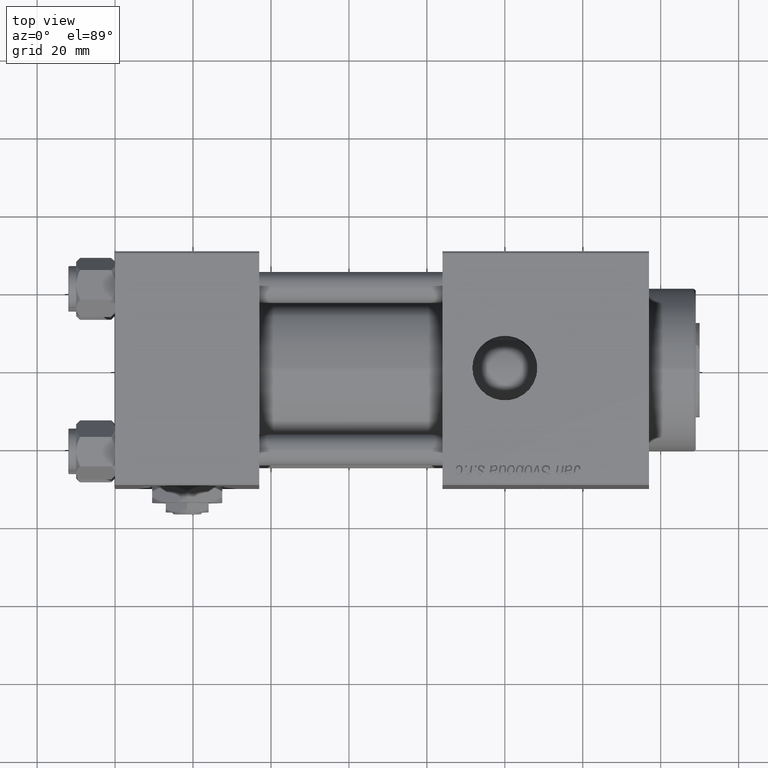
[diagram: clean part render]
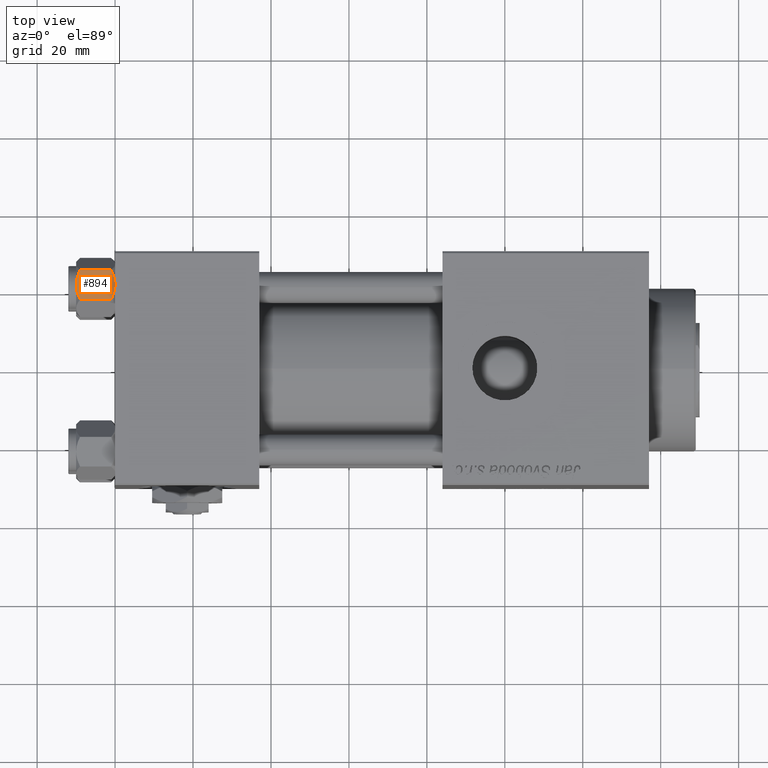
[diagram: same view with one face highlighted and labeled with its STEP entity id]
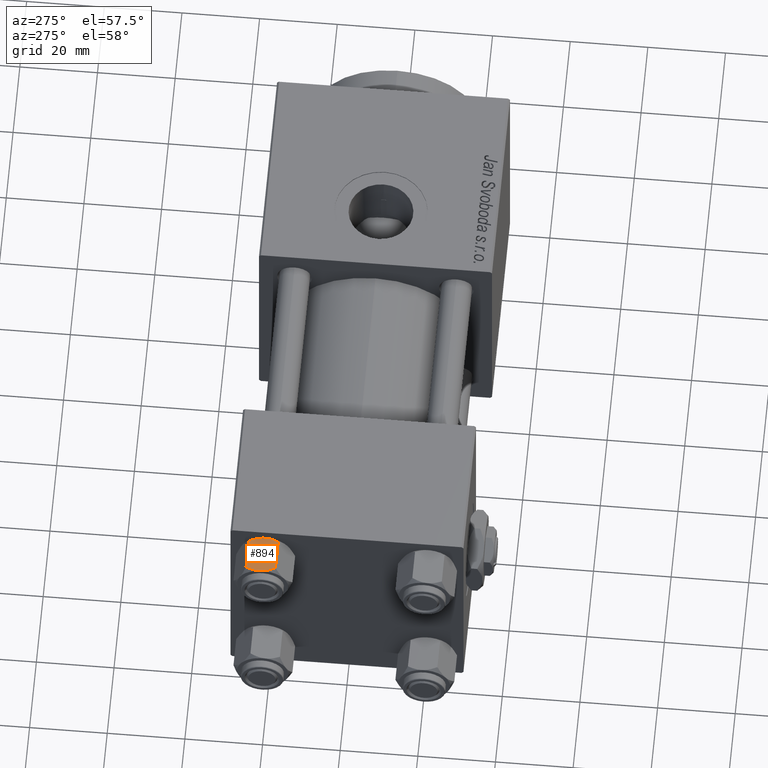
[diagram: same view with one face highlighted and labeled with its STEP entity id]
A machine part, top view. The second image highlights one B-rep face of the part: STEP entity #894.
A second angle (auxiliary view) of the same face is appended — the face is thin or edge-on in the first view.
In plain terms, the highlighted planar face has unit normal (-0, -0.0859, -0.9963).
Its self-contained STEP definition (entity closure, byte-faithful):
#151 = FACE_OUTER_BOUND ( 'NONE', #7601, .T. ) ;
#376 = CARTESIAN_POINT ( 'NONE',  ( -1.321220139090811596, -6.599113576837424056, -0.1031287899203731512 ) ) ;
#737 = DIRECTION ( 'NONE',  ( -2.276539994720218856E-16, 1.000000000000000000, 0.000000000000000000 ) ) ;
#784 = CARTESIAN_POINT ( 'NONE',  ( 3.810000000000001830, -6.599113576837421391, -1.020886423162573386 ) ) ;
#894 = ADVANCED_FACE ( 'NONE', ( #151 ), #50441, .F. ) ;
#1128 = CARTESIAN_POINT ( 'NONE',  ( 3.810000000000001830, -6.599113576837421391, -1.020886423162573386 ) ) ;
#1392 = CARTESIAN_POINT ( 'NONE',  ( 1.322914178891813064, -6.599113576837424056, -0.1235268105129692928 ) ) ;
#1695 = ORIENTED_EDGE ( 'NONE', *, *, #39317, .T. ) ;
#2037 = CARTESIAN_POINT ( 'NONE',  ( -3.810000000000000941, -6.599113576837422279, -8.979113576837425725 ) ) ;
#2202 = B_SPLINE_CURVE_WITH_KNOTS ( 'NONE', 3,
 ( #21491, #25641, #43247, #34601, #52766, #20621, #29838, #3627 ),
 .UNSPECIFIED., .F., .F.,
 ( 4, 2, 2, 4 ),
 ( 0.009819555616540128623, 0.01081320815973739469, 0.01180686070293466075, 0.01379416578932919114 ),
 .UNSPECIFIED. ) ;
#3627 = CARTESIAN_POINT ( 'NONE',  ( 1.502314598737159031E-15, -6.599113576837423167, -10.00000000000000000 ) ) ;
#4202 = VECTOR ( 'NONE', #47600, 1000.000000000000000 ) ;
#4256 = LINE ( 'NONE', #17941, #45630 ) ;
#4468 = CARTESIAN_POINT ( 'NONE',  ( 1.502314598737159031E-15, -6.599113576837423167, -10.00000000000000000 ) ) ;
#5425 = VERTEX_POINT ( 'NONE', #26906 ) ;
#6099 = DIRECTION ( 'NONE',  ( -1.000000000000000000, -2.276539994720218856E-16, 0.000000000000000000 ) ) ;
#6650 = ORIENTED_EDGE ( 'NONE', *, *, #24175, .F. ) ;
#7471 = CARTESIAN_POINT ( 'NONE',  ( 3.810000000000002274, -6.599113576837421391, -8.979113576837427502 ) ) ;
#7601 = EDGE_LOOP ( 'NONE', ( #51574, #1695, #19340, #44867, #19160, #6650 ) ) ;
#9071 = VERTEX_POINT ( 'NONE', #46241 ) ;
#11971 = B_SPLINE_CURVE_WITH_KNOTS ( 'NONE', 3,
 ( #49787, #39969, #58150, #22984, #41134, #376, #45329, #36386 ),
 .UNSPECIFIED., .F., .F.,
 ( 4, 2, 2, 4 ),
 ( 0.009819555616540130358, 0.01081320815973739642, 0.01180686070293466249, 0.01379416578932919461 ),
 .UNSPECIFIED. ) ;
#12419 = AXIS2_PLACEMENT_3D ( 'NONE', #41510, #737, #6099 ) ;
#12548 = CARTESIAN_POINT ( 'NONE',  ( -2.597134508597688018, -6.599113576837424056, -9.533493788376173228 ) ) ;
#13268 = VERTEX_POINT ( 'NONE', #2037 ) ;
#17595 = EDGE_CURVE ( 'NONE', #9071, #5425, #11971, .T. ) ;
#17941 = CARTESIAN_POINT ( 'NONE',  ( -3.810000000000000497, -6.599113576837423167, -10.00000000000000000 ) ) ;
#18658 = CARTESIAN_POINT ( 'NONE',  ( 2.597134508597689795, -6.599113576837422279, -0.4665062116238259393 ) ) ;
#19160 = ORIENTED_EDGE ( 'NONE', *, *, #22854, .F. ) ;
#19340 = ORIENTED_EDGE ( 'NONE', *, *, #47208, .F. ) ;
#20621 = CARTESIAN_POINT ( 'NONE',  ( 1.321220139090812928, -6.599113576837419615, -9.896871210079625669 ) ) ;
#21178 = CARTESIAN_POINT ( 'NONE',  ( -3.218941489257537203, -6.599113576837424944, -9.274642832208826349 ) ) ;
#21491 = CARTESIAN_POINT ( 'NONE',  ( 3.810000000000002274, -6.599113576837421391, -8.979113576837427502 ) ) ;
#22854 = EDGE_CURVE ( 'NONE', #13268, #9071, #4256, .T. ) ;
#22984 = CARTESIAN_POINT ( 'NONE',  ( -2.595243993515035541, -6.599113576837424056, -0.4863343809427778663 ) ) ;
#23115 = CARTESIAN_POINT ( 'NONE',  ( 1.644694619042206263, -6.599113576837420503, -0.1950540855582392763 ) ) ;
#24175 = EDGE_CURVE ( 'NONE', #52134, #13268, #58036, .T. ) ;
#25345 = CARTESIAN_POINT ( 'NONE',  ( -1.644694619042203376, -6.599113576837423167, -9.804945914441761445 ) ) ;
#25624 = CARTESIAN_POINT ( 'NONE',  ( -3.810000000000000941, -6.599113576837422279, -8.979113576837425725 ) ) ;
#25641 = CARTESIAN_POINT ( 'NONE',  ( 3.514577180542135082, -6.599113576837422279, -9.126824986566363762 ) ) ;
#26906 = CARTESIAN_POINT ( 'NONE',  ( 1.502314598737159031E-15, -6.599113576837423167, 0.000000000000000000 ) ) ;
#29838 = CARTESIAN_POINT ( 'NONE',  ( 0.6696516825697170772, -6.599113576837421391, -10.00000000000003553 ) ) ;
#29866 = EDGE_CURVE ( 'NONE', #48782, #52134, #2202, .T. ) ;
#30391 = CARTESIAN_POINT ( 'NONE',  ( -0.3341450623252832375, -6.599113576837424056, -10.00000000000003908 ) ) ;
#32040 = CARTESIAN_POINT ( 'NONE',  ( 1.502314598737159031E-15, -6.599113576837423167, 0.000000000000000000 ) ) ;
#34601 = CARTESIAN_POINT ( 'NONE',  ( 2.595243993515039538, -6.599113576837422279, -9.513665619057226408 ) ) ;
#36386 = CARTESIAN_POINT ( 'NONE',  ( 1.502314598737159031E-15, -6.599113576837423167, 0.000000000000000000 ) ) ;
#37387 = CARTESIAN_POINT ( 'NONE',  ( 0.6690374540965451367, -6.599113576837424056, -0.02594513746131340073 ) ) ;
#37496 = LINE ( 'NONE', #55671, #4202 ) ;
#39187 = B_SPLINE_CURVE_WITH_KNOTS ( 'NONE', 3,
 ( #32040, #50789, #37387, #1392, #23115, #18658, #46034, #784 ),
 .UNSPECIFIED., .F., .F.,
 ( 4, 2, 2, 4 ),
 ( 0.01379416578932919461, 0.01478579800535598232, 0.01577743022138276829, 0.01776069465343634371 ),
 .UNSPECIFIED. ) ;
#39317 = EDGE_CURVE ( 'NONE', #48782, #57107, #37496, .T. ) ;
#39969 = CARTESIAN_POINT ( 'NONE',  ( -3.514577180542132417, -6.599113576837423167, -0.8731750134336407898 ) ) ;
#40203 = CARTESIAN_POINT ( 'NONE',  ( -1.322914178891809511, -6.599113576837419615, -9.876473189487029458 ) ) ;
#41134 = CARTESIAN_POINT ( 'NONE',  ( -2.277955073808399344, -6.599113576837422279, -0.3754051764526859514 ) ) ;
#41510 = CARTESIAN_POINT ( 'NONE',  ( 3.810000000000002274, -6.599113576837421391, -10.00000000000000000 ) ) ;
#43247 = CARTESIAN_POINT ( 'NONE',  ( 3.213362517975222765, -6.599113576837421391, -9.264675626424066834 ) ) ;
#44096 = CARTESIAN_POINT ( 'NONE',  ( 1.502314598737159031E-15, -6.599113576837423167, -10.00000000000000000 ) ) ;
#44867 = ORIENTED_EDGE ( 'NONE', *, *, #17595, .F. ) ;
#45329 = CARTESIAN_POINT ( 'NONE',  ( -0.6696516825697146347, -6.599113576837423167, 3.561265323435979714E-14 ) ) ;
#45612 = DIRECTION ( 'NONE',  ( -0.000000000000000000, -0.000000000000000000, 1.000000000000000000 ) ) ;
#45630 = VECTOR ( 'NONE', #45612, 1000.000000000000000 ) ;
#46034 = CARTESIAN_POINT ( 'NONE',  ( 3.218941489257540312, -6.599113576837421391, -0.7253571677911765381 ) ) ;
#46241 = CARTESIAN_POINT ( 'NONE',  ( -3.810000000000000497, -6.599113576837423167, -1.020886423162574275 ) ) ;
#47208 = EDGE_CURVE ( 'NONE', #5425, #57107, #39187, .T. ) ;
#47600 = DIRECTION ( 'NONE',  ( -0.000000000000000000, -0.000000000000000000, 1.000000000000000000 ) ) ;
#48554 = CARTESIAN_POINT ( 'NONE',  ( -0.6690374540965414729, -6.599113576837422279, -9.974054862538686450 ) ) ;
#48782 = VERTEX_POINT ( 'NONE', #7471 ) ;
#49787 = CARTESIAN_POINT ( 'NONE',  ( -3.810000000000000497, -6.599113576837423167, -1.020886423162574275 ) ) ;
#50441 = PLANE ( 'NONE',  #12419 ) ;
#50789 = CARTESIAN_POINT ( 'NONE',  ( 0.3341450623252860130, -6.599113576837423167, 3.654608354223402981E-14 ) ) ;
#51574 = ORIENTED_EDGE ( 'NONE', *, *, #29866, .F. ) ;
#52134 = VERTEX_POINT ( 'NONE', #4468 ) ;
#52766 = CARTESIAN_POINT ( 'NONE',  ( 2.277955073808402897, -6.599113576837421391, -9.624594823547313993 ) ) ;
#55671 = CARTESIAN_POINT ( 'NONE',  ( 3.810000000000002274, -6.599113576837421391, -10.00000000000000000 ) ) ;
#57107 = VERTEX_POINT ( 'NONE', #1128 ) ;
#58036 = B_SPLINE_CURVE_WITH_KNOTS ( 'NONE', 3,
 ( #44096, #30391, #48554, #40203, #25345, #12548, #21178, #25624 ),
 .UNSPECIFIED., .F., .F.,
 ( 4, 2, 2, 4 ),
 ( 0.01379416578932919114, 0.01478579800535597885, 0.01577743022138276482, 0.01776069465343634024 ),
 .UNSPECIFIED. ) ;
#58150 = CARTESIAN_POINT ( 'NONE',  ( -3.213362517975220545, -6.599113576837424056, -0.7353243735759362742 ) ) ;